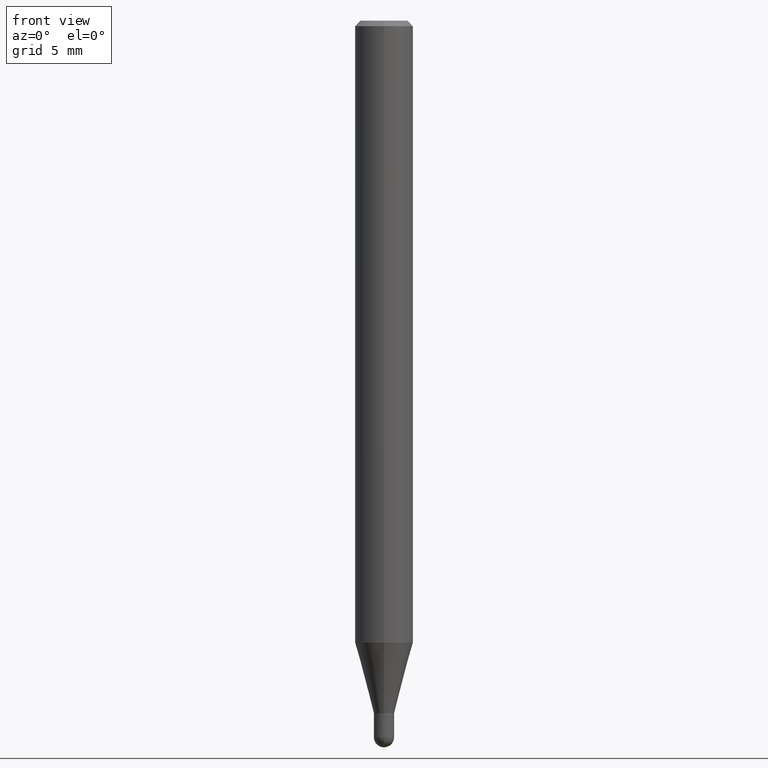
[diagram: clean part render]
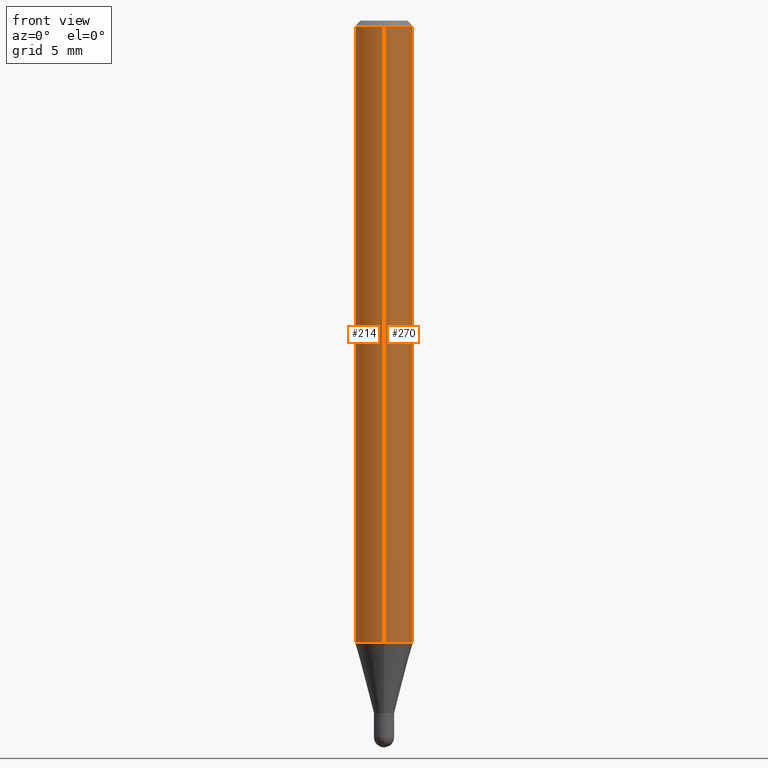
[diagram: same view with one multi-face feature highlighted, each face labeled with its STEP entity id]
A machine part, front view. The highlighted faces form ONE feature: a constant-radius fillet chain: 2 tangent blend faces with common blend radius 2.0002 mm. The faces share edges in the B-rep.
Their STEP definitions:
[1] entity #270 (Cylinder):
#27 = CARTESIAN_POINT ( 'NONE',  ( 5.595524044110787031E-16, 0.07875000000000000056, -2.749550601170466323E-16 ) ) ;
#58 = DIRECTION ( 'NONE',  ( -6.982962677686264344E-15, -1.000000000000000000, 3.496114991891765576E-15 ) ) ;
#69 = AXIS2_PLACEMENT_3D ( 'NONE', #420, #349, #58 ) ;
#83 = CARTESIAN_POINT ( 'NONE',  ( -5.499083108677525221E-16, -0.07875000000000589861, -1.684418998652473354 ) ) ;
#92 = CARTESIAN_POINT ( 'NONE',  ( -5.499083108677933457E-16, -0.07875000000000000056, 2.749550601170466323E-16 ) ) ;
#95 = DIRECTION ( 'NONE',  ( -2.445460784129690080E-29, 3.491492826883132609E-15, 1.000000000000000000 ) ) ;
#96 = ORIENTED_EDGE ( 'NONE', *, *, #330, .F. ) ;
#99 = FACE_OUTER_BOUND ( 'NONE', #401, .T. ) ;
#101 = VERTEX_POINT ( 'NONE', #83 ) ;
#112 = VERTEX_POINT ( 'NONE', #482 ) ;
#142 = DIRECTION ( 'NONE',  ( -2.445460784129690080E-29, 3.491492826883132609E-15, 1.000000000000000000 ) ) ;
#155 = AXIS2_PLACEMENT_3D ( 'NONE', #457, #421, #426 ) ;
#175 = LINE ( 'NONE', #92, #395 ) ;
#231 = VERTEX_POINT ( 'NONE', #497 ) ;
#242 = ORIENTED_EDGE ( 'NONE', *, *, #325, .T. ) ;
#243 = EDGE_CURVE ( 'NONE', #231, #467, #464, .T. ) ;
#270 = ADVANCED_FACE ( 'NONE', ( #99 ), #302, .T. ) ;
#273 = CARTESIAN_POINT ( 'NONE',  ( 5.595524044111202169E-16, 0.07874999999999994504, -0.01500000000000004108 ) ) ;
#296 = EDGE_CURVE ( 'NONE', #112, #467, #388, .T. ) ;
#302 = CYLINDRICAL_SURFACE ( 'NONE', #471, 0.07875000000000000056 ) ;
#318 = VECTOR ( 'NONE', #95, 39.37007874015748143 ) ;
#325 = EDGE_CURVE ( 'NONE', #101, #231, #411, .T. ) ;
#330 = EDGE_CURVE ( 'NONE', #101, #112, #175, .T. ) ;
#349 = DIRECTION ( 'NONE',  ( -2.445460784129690080E-29, 3.491492826883132215E-15, 1.000000000000000000 ) ) ;
#385 = DIRECTION ( 'NONE',  ( -6.982962677686264344E-15, -1.000000000000000000, 3.491492826883131820E-15 ) ) ;
#388 = CIRCLE ( 'NONE', #69, 0.07875000000000000056 ) ;
#389 = CARTESIAN_POINT ( 'NONE',  ( 0.000000000000000000, 0.000000000000000000, 0.000000000000000000 ) ) ;
#390 = DIRECTION ( 'NONE',  ( -2.445460784129690080E-29, 3.491492826883132215E-15, 1.000000000000000000 ) ) ;
#395 = VECTOR ( 'NONE', #142, 39.37007874015748143 ) ;
#401 = EDGE_LOOP ( 'NONE', ( #242, #433, #504, #96 ) ) ;
#411 = CIRCLE ( 'NONE', #155, 0.07875000000000000056 ) ;
#420 = CARTESIAN_POINT ( 'NONE',  ( 3.668191176194477650E-31, -5.237239240324616847E-17, -0.01499999999999976526 ) ) ;
#421 = DIRECTION ( 'NONE',  ( -2.445460784129690080E-29, 3.491492826883132215E-15, 1.000000000000000000 ) ) ;
#426 = DIRECTION ( 'NONE',  ( -6.982962677686264344E-15, -1.000000000000000000, 3.469013325287953293E-15 ) ) ;
#433 = ORIENTED_EDGE ( 'NONE', *, *, #243, .T. ) ;
#457 = CARTESIAN_POINT ( 'NONE',  ( 4.119180605247625477E-29, -5.881136851260779316E-15, -1.684418998652473798 ) ) ;
#464 = LINE ( 'NONE', #27, #318 ) ;
#467 = VERTEX_POINT ( 'NONE', #273 ) ;
#471 = AXIS2_PLACEMENT_3D ( 'NONE', #389, #390, #385 ) ;
#482 = CARTESIAN_POINT ( 'NONE',  ( -5.499083108677930499E-16, -0.07875000000000004219, -0.01499999999999948944 ) ) ;
#497 = CARTESIAN_POINT ( 'NONE',  ( 5.595524044111199211E-16, 0.07874999999999410250, -1.684418998652474020 ) ) ;
#504 = ORIENTED_EDGE ( 'NONE', *, *, #296, .F. ) ;
[2] entity #214 (Cylinder):
#7 = ORIENTED_EDGE ( 'NONE', *, *, #243, .F. ) ;
#27 = CARTESIAN_POINT ( 'NONE',  ( 5.595524044110787031E-16, 0.07875000000000000056, -2.749550601170466323E-16 ) ) ;
#47 = FACE_OUTER_BOUND ( 'NONE', #404, .T. ) ;
#68 = AXIS2_PLACEMENT_3D ( 'NONE', #207, #371, #297 ) ;
#83 = CARTESIAN_POINT ( 'NONE',  ( -5.499083108677525221E-16, -0.07875000000000589861, -1.684418998652473354 ) ) ;
#92 = CARTESIAN_POINT ( 'NONE',  ( -5.499083108677933457E-16, -0.07875000000000000056, 2.749550601170466323E-16 ) ) ;
#95 = DIRECTION ( 'NONE',  ( -2.445460784129690080E-29, 3.491492826883132609E-15, 1.000000000000000000 ) ) ;
#101 = VERTEX_POINT ( 'NONE', #83 ) ;
#112 = VERTEX_POINT ( 'NONE', #482 ) ;
#137 = AXIS2_PLACEMENT_3D ( 'NONE', #306, #505, #343 ) ;
#142 = DIRECTION ( 'NONE',  ( -2.445460784129690080E-29, 3.491492826883132609E-15, 1.000000000000000000 ) ) ;
#170 = CARTESIAN_POINT ( 'NONE',  ( 4.119180605247625477E-29, -5.881136851260779316E-15, -1.684418998652473798 ) ) ;
#172 = ORIENTED_EDGE ( 'NONE', *, *, #234, .F. ) ;
#175 = LINE ( 'NONE', #92, #395 ) ;
#207 = CARTESIAN_POINT ( 'NONE',  ( 0.000000000000000000, 0.000000000000000000, 0.000000000000000000 ) ) ;
#214 = ADVANCED_FACE ( 'NONE', ( #47 ), #408, .T. ) ;
#227 = AXIS2_PLACEMENT_3D ( 'NONE', #170, #261, #268 ) ;
#231 = VERTEX_POINT ( 'NONE', #497 ) ;
#233 = ORIENTED_EDGE ( 'NONE', *, *, #303, .T. ) ;
#234 = EDGE_CURVE ( 'NONE', #467, #112, #394, .T. ) ;
#243 = EDGE_CURVE ( 'NONE', #231, #467, #464, .T. ) ;
#261 = DIRECTION ( 'NONE',  ( -2.445460784129690080E-29, 3.491492826883132215E-15, 1.000000000000000000 ) ) ;
#268 = DIRECTION ( 'NONE',  ( -6.982962677686264344E-15, -1.000000000000000000, 3.469013325287953293E-15 ) ) ;
#273 = CARTESIAN_POINT ( 'NONE',  ( 5.595524044111202169E-16, 0.07874999999999994504, -0.01500000000000004108 ) ) ;
#297 = DIRECTION ( 'NONE',  ( -6.982962677686264344E-15, -1.000000000000000000, 3.491492826883131820E-15 ) ) ;
#303 = EDGE_CURVE ( 'NONE', #231, #101, #346, .T. ) ;
#306 = CARTESIAN_POINT ( 'NONE',  ( 3.668191176194477650E-31, -5.237239240324616847E-17, -0.01499999999999976526 ) ) ;
#318 = VECTOR ( 'NONE', #95, 39.37007874015748143 ) ;
#320 = ORIENTED_EDGE ( 'NONE', *, *, #330, .T. ) ;
#330 = EDGE_CURVE ( 'NONE', #101, #112, #175, .T. ) ;
#343 = DIRECTION ( 'NONE',  ( -6.982962677686264344E-15, -1.000000000000000000, 3.496114991891765576E-15 ) ) ;
#346 = CIRCLE ( 'NONE', #227, 0.07875000000000000056 ) ;
#371 = DIRECTION ( 'NONE',  ( -2.445460784129690080E-29, 3.491492826883132215E-15, 1.000000000000000000 ) ) ;
#394 = CIRCLE ( 'NONE', #137, 0.07875000000000000056 ) ;
#395 = VECTOR ( 'NONE', #142, 39.37007874015748143 ) ;
#404 = EDGE_LOOP ( 'NONE', ( #7, #233, #320, #172 ) ) ;
#408 = CYLINDRICAL_SURFACE ( 'NONE', #68, 0.07875000000000000056 ) ;
#464 = LINE ( 'NONE', #27, #318 ) ;
#467 = VERTEX_POINT ( 'NONE', #273 ) ;
#482 = CARTESIAN_POINT ( 'NONE',  ( -5.499083108677930499E-16, -0.07875000000000004219, -0.01499999999999948944 ) ) ;
#497 = CARTESIAN_POINT ( 'NONE',  ( 5.595524044111199211E-16, 0.07874999999999410250, -1.684418998652474020 ) ) ;
#505 = DIRECTION ( 'NONE',  ( -2.445460784129690080E-29, 3.491492826883132215E-15, 1.000000000000000000 ) ) ;